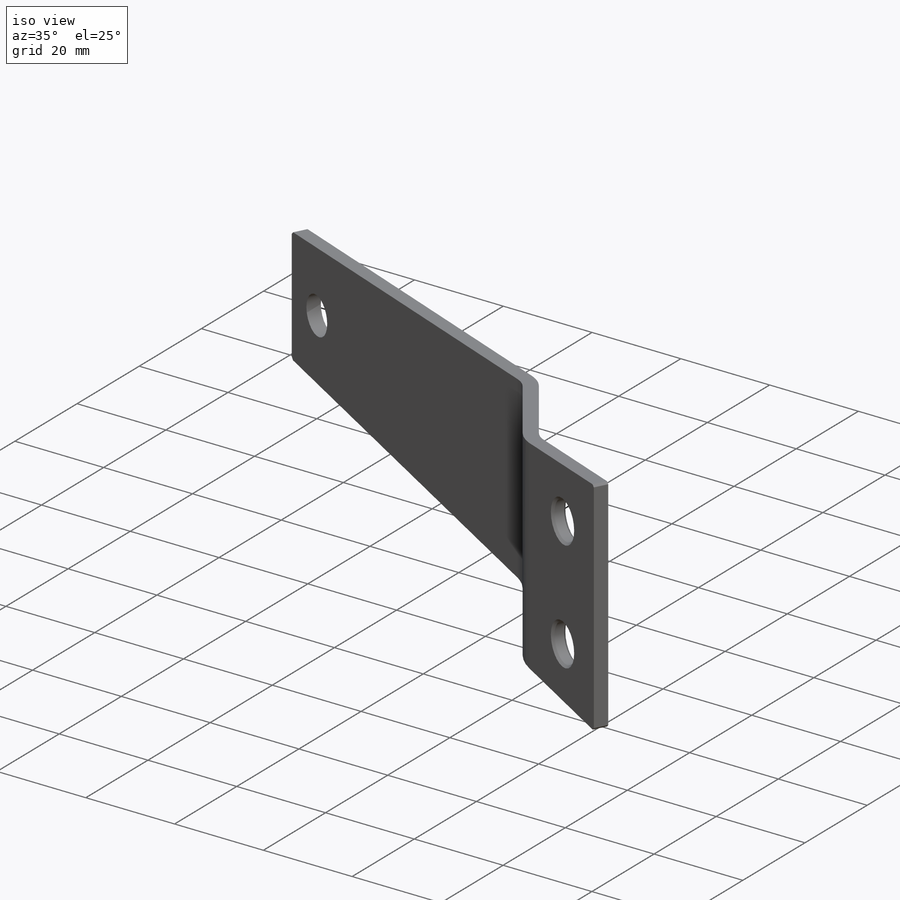
[diagram: iso view]
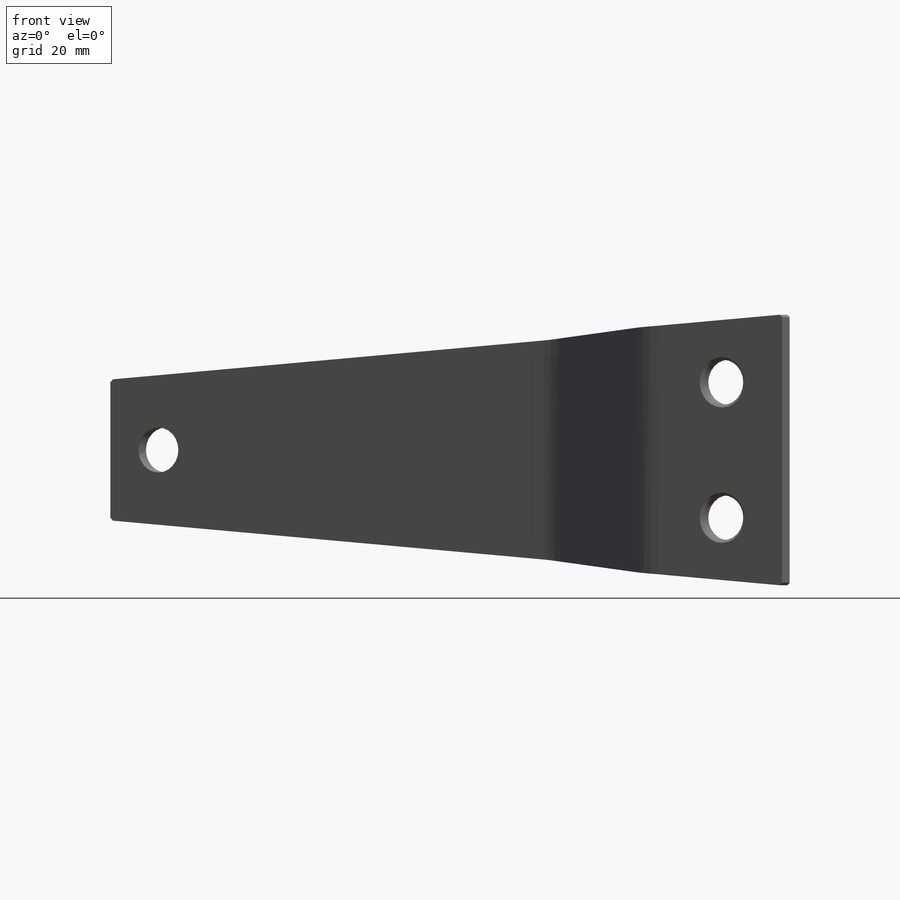
[diagram: front view]
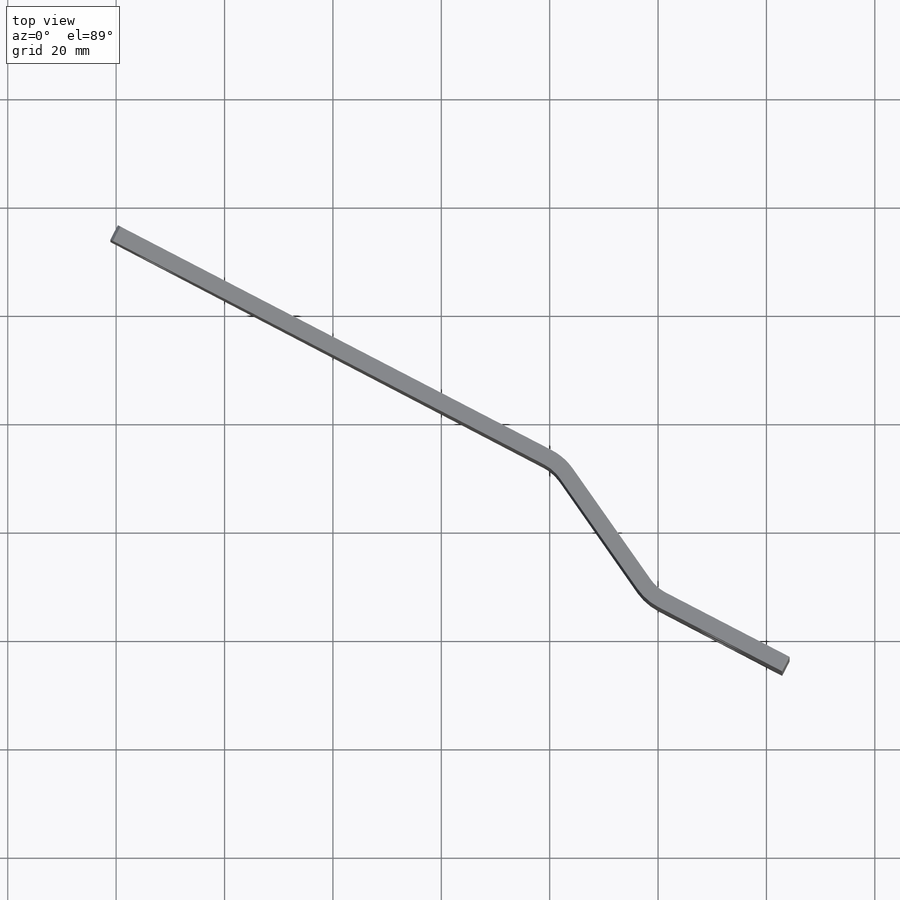
[diagram: top view]
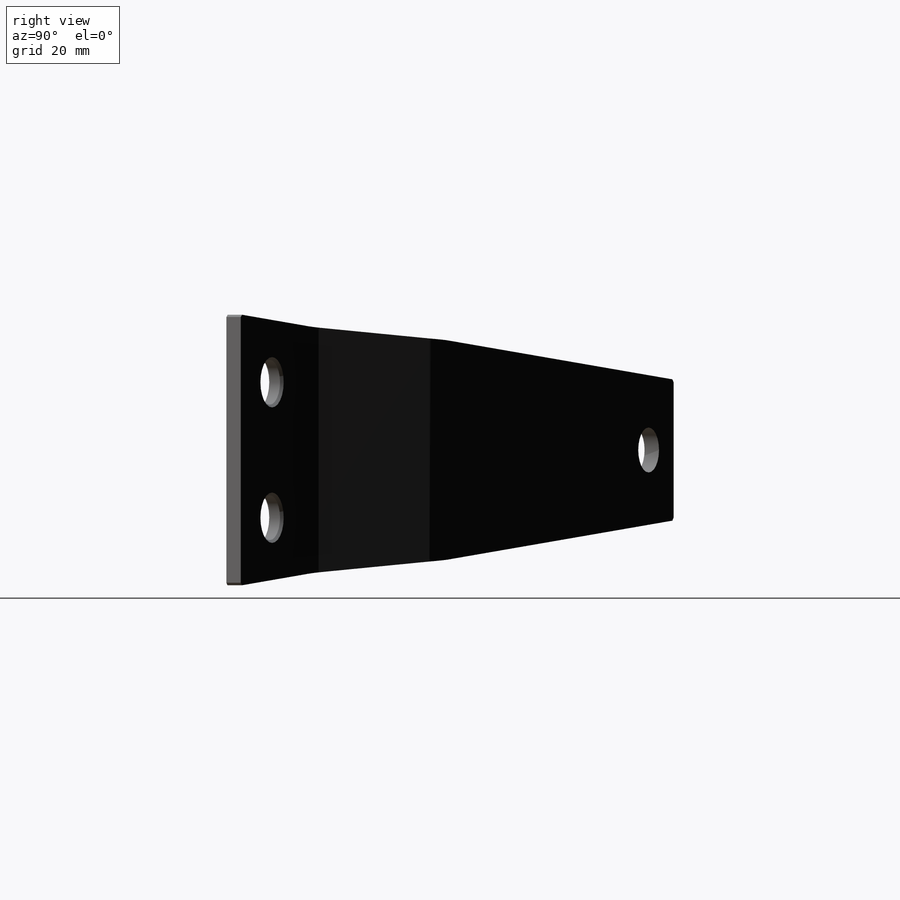
[diagram: right view]
SOLIDWORKS PART (.sldprt)
format: sldprt  version: not decoded by parser v0  size: 310,272 bytes
history: native  units: mm
features: sketch x8, plane x6, sheet_metal_op x3, cut_extrude x2, chamfer x2, material x1 + 4 further entries (+8 scaffold rows collapsed)
feature tree (34):
  scaffold x8  (default folders/planes/origin — collapsed)
  material  "Materiál <není určen>"
  plane  "Přední rovina"
  plane  "Horní rovina"
  plane  "Pravá rovina"
  sketch  "Skica1"  dims[c1.D1=~89.332734mm c1.D2=150.0mm c2.D1=150.0mm c2.D2=26.0mm c2.D3=50.0mm c2.D4=92.5mm c2.D5=28.0mm]
  sheet_metal_op  "Plechový díl2"
  sheet_metal_op  "Základní plech2"
  sketch  "Skica12"  dims[D1=92.5mm]
  "Transformace skici4"
  plane  "Rovina1"  Offset=0mm
  sketch  "Skica13"  dims[D1=28.0mm Ohyb ze skici8=0.0]
  sheet_metal_op  "Transformace skici5"
  "Ohyb ze skici9"
  plane  "Rovina3"  Offset=0mm
  sketch  "Skica15"  dims[c1.D1=8.3mm c1.D3=10.3mm c1.D4=8.3mm c2.D3=8.3mm c2.D2=10.0mm c2.D5=6.5mm c2.D6=6.5mm c2.D7=12.5mm c3.D5=6.5mm c3.D8=24.7mm c4.D5=25.0mm c4.D6=12.5mm c4.D8=12.5mm]
  cut_extrude  "Odebrat vysunutím1"  Depth=25mm
  chamfer  "Zkosení1"  Distance=0.5mm Angle=45deg
  chamfer  "Zkosení2"  Distance=0.5mm Angle=45deg
  sketch  "Skica17"
  plane  "Rovina5"
  sketch  "Skica18-rovina5"  dims[c1.D1=0.5mm c1.D2=0.5mm c2.D1=0.5mm c2.D7=0.5mm c2.D2=0.5mm c3.D1=0.5mm c3.D3=0.5mm c3.D4=2.5mm c4.D1=1.25mm c4.D5=0.25mm c4.D2=0.5mm c4.D6=2.5mm c4.D4=2.5mm c4.D3=0.5mm c5.D1=0.5mm]
  cut_extrude  "Odebrat vysunutím2"  Depth=4.16mm
  "Rozvinutý tvar2"
  sketch  "Čáry ohybu2"
  sketch  "Vymezovací rámeček2"
  "Rozvinutí-<Ohyb ze skici9>1"
decode coverage: 9 of 15 modeling features carry decoded parameters; 4 rows unclassified (native names shown)
note: ~ marks probable driven/reference dimensions
note: suppression state not decoded; provenance and decode notes live in map.json
